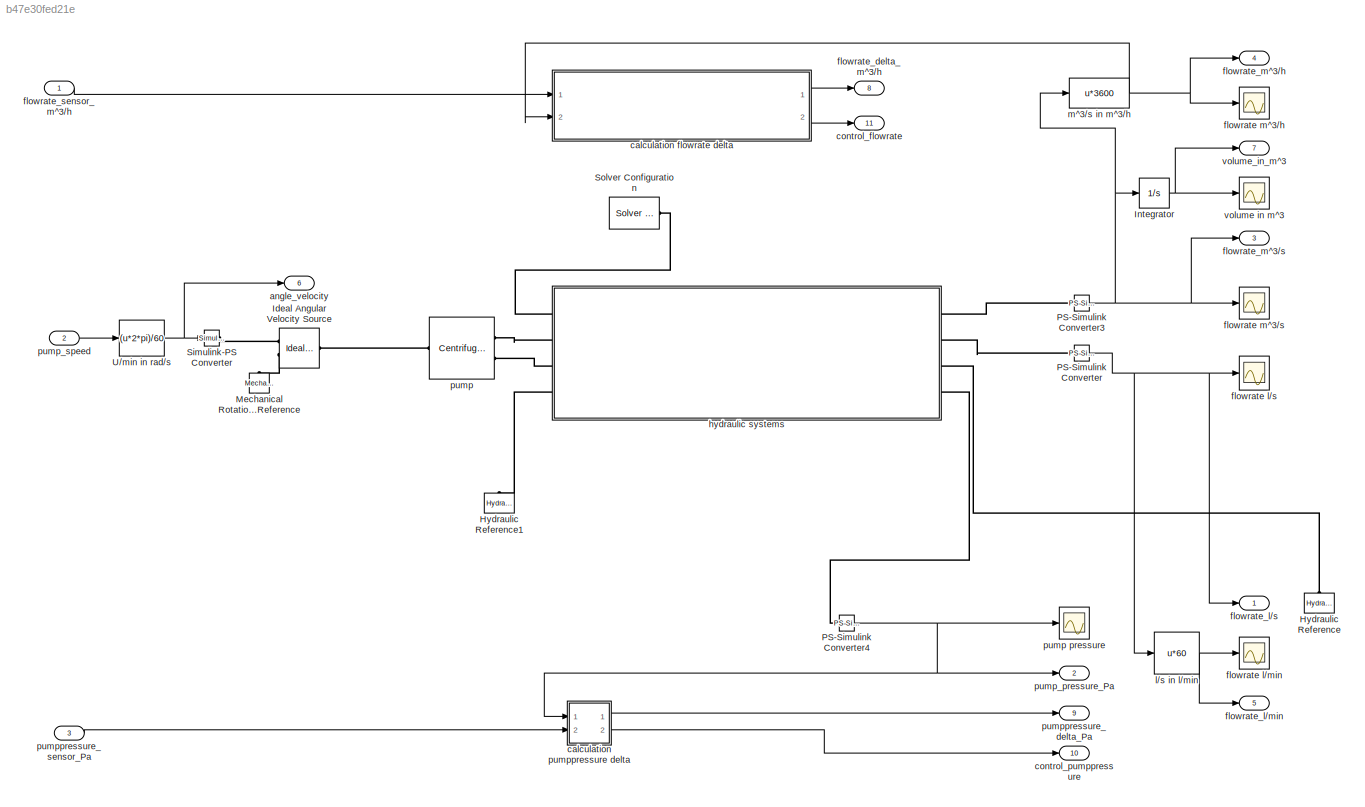
MODEL slx_b47e30fed21e
KIND model
CONFIG AbsTol = auto
CONFIG EnableMultiTasking = off
CONFIG FixedStep = auto
CONFIG MaxStep = auto
CONFIG MinStep = auto
CONFIG RelTol = 1e-3
CONFIG SampleTimeConstraint = Unconstrained
CONFIG Solver = FixedStepAuto
CONFIG SolverName = FixedStepAuto
CONFIG StartTime = 0.0
CONFIG StopTime = 10.0
BLOCK [Reference] Hydraulic Reference  REF=fl_lib/Hydraulic/Hydraulic Elements/Hydraulic Reference
  Ports = [0, 0, 0, 0, 0, 1]
  SourceBlock = fl_lib/Hydraulic/Hydraulic Elements/Hydraulic Reference
  SourceProductBaseCode = SS
  SourceProductName = Simscape
  SourceType = Hydraulic Reference
BLOCK [Reference] Hydraulic Reference1  REF=fl_lib/Hydraulic/Hydraulic Elements/Hydraulic Reference
  Ports = [0, 0, 0, 0, 0, 1]
  SourceBlock = fl_lib/Hydraulic/Hydraulic Elements/Hydraulic Reference
  SourceProductBaseCode = SS
  SourceProductName = Simscape
  SourceType = Hydraulic Reference
BLOCK [Reference] Ideal Angular Velocity Source  REF=fl_lib/Mechanical/Mechanical Sources/Ideal Angular
Velocity Source
  Ports = [0, 0, 0, 0, 0, 1, 2]
  SourceBlock = fl_lib/Mechanical/Mechanical Sources/Ideal Angular\nVelocity Source
  SourceProductBaseCode = SS
  SourceProductName = Simscape
  SourceType = Ideal Angular\nVelocity Source
BLOCK [Integrator] Integrator
  Ports = [1, 1]
BLOCK [Reference] Mechanical Rotational Reference  REF=fl_lib/Mechanical/Rotational Elements/Mechanical
Rotational Reference
  Ports = [0, 0, 0, 0, 0, 1]
  SourceBlock = fl_lib/Mechanical/Rotational Elements/Mechanical\nRotational Reference
  SourceProductBaseCode = SS
  SourceProductName = Simscape
  SourceType = Mechanical\nRotational Reference
BLOCK [Reference] PS-Simulink Converter  REF=nesl_utility/PS-Simulink
Converter
  Ports = [0, 1, 0, 0, 0, 1]
  SourceBlock = nesl_utility/PS-Simulink\nConverter
  SourceProductBaseCode = SS
  SourceProductName = Simscape
  SourceType = PS-Simulink\nConverter
BLOCK [Reference] PS-Simulink Converter3  REF=nesl_utility/PS-Simulink
Converter
  Ports = [0, 1, 0, 0, 0, 1]
  SourceBlock = nesl_utility/PS-Simulink\nConverter
  SourceProductBaseCode = SS
  SourceProductName = Simscape
  SourceType = PS-Simulink\nConverter
BLOCK [Reference] PS-Simulink Converter4  REF=nesl_utility/PS-Simulink
Converter
  Ports = [0, 1, 0, 0, 0, 1]
  SourceBlock = nesl_utility/PS-Simulink\nConverter
  SourceProductBaseCode = SS
  SourceProductName = Simscape
  SourceType = PS-Simulink\nConverter
BLOCK [Reference] Simulink-PS Converter  REF=nesl_utility/Simulink-PS
Converter
  Ports = [1, 0, 0, 0, 0, 0, 1]
  SourceBlock = nesl_utility/Simulink-PS\nConverter
  SourceProductBaseCode = SS
  SourceProductName = Simscape
  SourceType = Simulink-PS\nConverter
BLOCK [Reference] Solver Configuration  REF=nesl_utility/Solver
Configuration
  Ports = [0, 0, 0, 0, 0, 0, 1]
  SourceBlock = nesl_utility/Solver\nConfiguration
  SourceProductBaseCode = SS
  SourceProductName = Simscape
  SourceType = Solver\nConfiguration
BLOCK [Fcn] U//min in rad//s
  Expr = (u*2*pi)/60
BLOCK [Outport] angle_velocity
  IconDisplay = Port number
  Port = 6
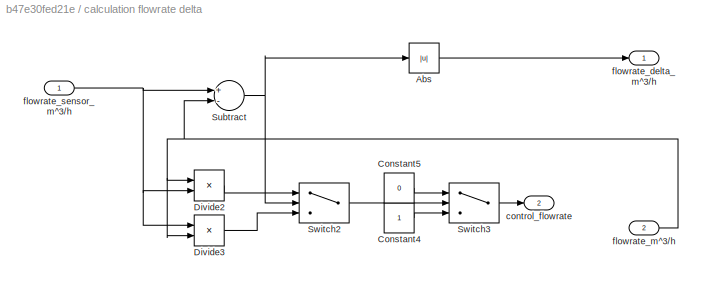
BLOCK [SubSystem] calculation flowrate delta
  Ports = [2, 2]
  RequestExecContextInheritance = off
BLOCK [Abs] calculation flowrate delta/Abs
  SaturateOnIntegerOverflow = off
BLOCK [Constant] calculation flowrate delta/Constant4
BLOCK [Constant] calculation flowrate delta/Constant5
  Value = 0
BLOCK [Product] calculation flowrate delta/Divide2
  InputSameDT = off
  Inputs = */
  OutDataTypeStr = Inherit: Inherit via internal rule
  Ports = [2, 1]
  RndMeth = Floor
  SaturateOnIntegerOverflow = off
BLOCK [Product] calculation flowrate delta/Divide3
  InputSameDT = off
  Inputs = */
  OutDataTypeStr = Inherit: Inherit via internal rule
  Ports = [2, 1]
  RndMeth = Floor
  SaturateOnIntegerOverflow = off
BLOCK [Sum] calculation flowrate delta/Subtract
  InputSameDT = off
  Inputs = +-
  OutDataTypeStr = Inherit: Inherit via internal rule
  Ports = [2, 1]
  SaturateOnIntegerOverflow = off
BLOCK [Switch] calculation flowrate delta/Switch2
  Criteria = u2 > Threshold
  InputSameDT = off
  SaturateOnIntegerOverflow = off
BLOCK [Switch] calculation flowrate delta/Switch3
  Criteria = u2 > Threshold
  InputSameDT = off
  SaturateOnIntegerOverflow = off
  Threshold = 0.9
BLOCK [Outport] calculation flowrate delta/control_flowrate
  IconDisplay = Port number
  Port = 2
BLOCK [Outport] calculation flowrate delta/flowrate_delta_m^3//h
  IconDisplay = Port number
BLOCK [Inport] calculation flowrate delta/flowrate_m^3//h
  IconDisplay = Port number
  Port = 2
BLOCK [Inport] calculation flowrate delta/flowrate_sensor_m^3//h
  IconDisplay = Port number
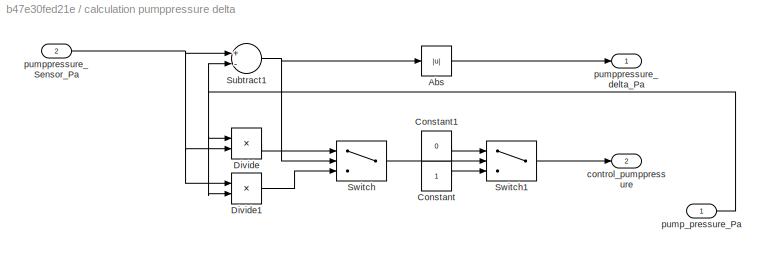
BLOCK [SubSystem] calculation pumppressure delta
  Ports = [2, 2]
  RequestExecContextInheritance = off
BLOCK [Abs] calculation pumppressure delta/Abs
  SaturateOnIntegerOverflow = off
BLOCK [Constant] calculation pumppressure delta/Constant
BLOCK [Constant] calculation pumppressure delta/Constant1
  Value = 0
BLOCK [Product] calculation pumppressure delta/Divide
  InputSameDT = off
  Inputs = */
  OutDataTypeStr = Inherit: Inherit via internal rule
  Ports = [2, 1]
  RndMeth = Floor
  SaturateOnIntegerOverflow = off
BLOCK [Product] calculation pumppressure delta/Divide1
  InputSameDT = off
  Inputs = */
  OutDataTypeStr = Inherit: Inherit via internal rule
  Ports = [2, 1]
  RndMeth = Floor
  SaturateOnIntegerOverflow = off
BLOCK [Sum] calculation pumppressure delta/Subtract1
  InputSameDT = off
  Inputs = +-
  OutDataTypeStr = Inherit: Inherit via internal rule
  Ports = [2, 1]
  SaturateOnIntegerOverflow = off
BLOCK [Switch] calculation pumppressure delta/Switch
  Criteria = u2 > Threshold
  InputSameDT = off
  SaturateOnIntegerOverflow = off
BLOCK [Switch] calculation pumppressure delta/Switch1
  Criteria = u2 > Threshold
  InputSameDT = off
  SaturateOnIntegerOverflow = off
  Threshold = 0.9
BLOCK [Outport] calculation pumppressure delta/control_pumppressure
  IconDisplay = Port number
  Port = 2
BLOCK [Inport] calculation pumppressure delta/pump_pressure_Pa
  IconDisplay = Port number
BLOCK [Inport] calculation pumppressure delta/pumppressure_Sensor_Pa
  IconDisplay = Port number
  Port = 2
BLOCK [Outport] calculation pumppressure delta/pumppressure_delta_Pa
  IconDisplay = Port number
BLOCK [Outport] control_flowrate
  IconDisplay = Port number
  Port = 11
BLOCK [Outport] control_pumppressure
  IconDisplay = Port number
  Port = 10
BLOCK [Scope] flowrate l//min
  Floating = off
  NumInputPorts = 1
  Ports = [1]
  ScopeSpecificationString = Simulink.scopes.TimeScopeBlockCfg('CurrentConfiguration', extmgr.ConfigurationSet(extmgr.Configuration('Core','General UI',true),extmgr.Configuration('Core','Source UI',true),extmgr.Configuration('Sources','WiredSimulink',true,'DataLoggingVariableName','ScopeData1'),extmgr.Configuration('Visuals','Time Domain',true,'SerializedDisplays',{struct('MinYLimReal','2651.61985','MaxYLimReal','4651.61985',...<+1451ch>
BLOCK [Scope] flowrate l//s
  Floating = off
  NumInputPorts = 1
  Ports = [1]
  ScopeSpecificationString = Simulink.scopes.TimeScopeBlockCfg('CurrentConfiguration', extmgr.ConfigurationSet(extmgr.Configuration('Core','General UI',true),extmgr.Configuration('Core','Source UI',true),extmgr.Configuration('Sources','WiredSimulink',true,'DataLoggingVariableName','ScopeData2'),extmgr.Configuration('Visuals','Time Domain',true,'SerializedDisplays',{struct('MinYLimReal','50.86033','MaxYLimReal','70.86033','YLa...<+1451ch>
BLOCK [Scope] flowrate m^3//h
  Floating = off
  NumInputPorts = 1
  Ports = [1]
  ScopeSpecificationString = Simulink.scopes.TimeScopeBlockCfg('CurrentConfiguration', extmgr.ConfigurationSet(extmgr.Configuration('Core','General UI',true),extmgr.Configuration('Core','Source UI',true),extmgr.Configuration('Sources','WiredSimulink',true,'DataLoggingVariableName','ScopeData3'),extmgr.Configuration('Visuals','Time Domain',true,'SerializedDisplays',{struct('MinYLimReal','119.58031','MaxYLimReal','319.58031','Y...<+1733ch>
BLOCK [Scope] flowrate m^3//s
  Floating = off
  NumInputPorts = 1
  Ports = [1]
  ScopeSpecificationString = Simulink.scopes.TimeScopeBlockCfg('CurrentConfiguration', extmgr.ConfigurationSet(extmgr.Configuration('Core','General UI',true),extmgr.Configuration('Core','Source UI',true),extmgr.Configuration('Sources','WiredSimulink',true,'DataLoggingVariableName','ScopeData4'),extmgr.Configuration('Visuals','Time Domain',true,'SerializedDisplays',{struct('MinYLimReal','-1.00000','MaxYLimReal','1.00000','YLab...<+1417ch>
BLOCK [Outport] flowrate_delta_m^3//h
  IconDisplay = Port number
  Port = 8
BLOCK [Outport] flowrate_l//min
  IconDisplay = Port number
  Port = 5
BLOCK [Outport] flowrate_l//s
  IconDisplay = Port number
BLOCK [Outport] flowrate_m^3//h
  IconDisplay = Port number
  Port = 4
BLOCK [Outport] flowrate_m^3//s
  IconDisplay = Port number
  Port = 3
BLOCK [Inport] flowrate_sensor_m^3//h
  IconDisplay = Port number
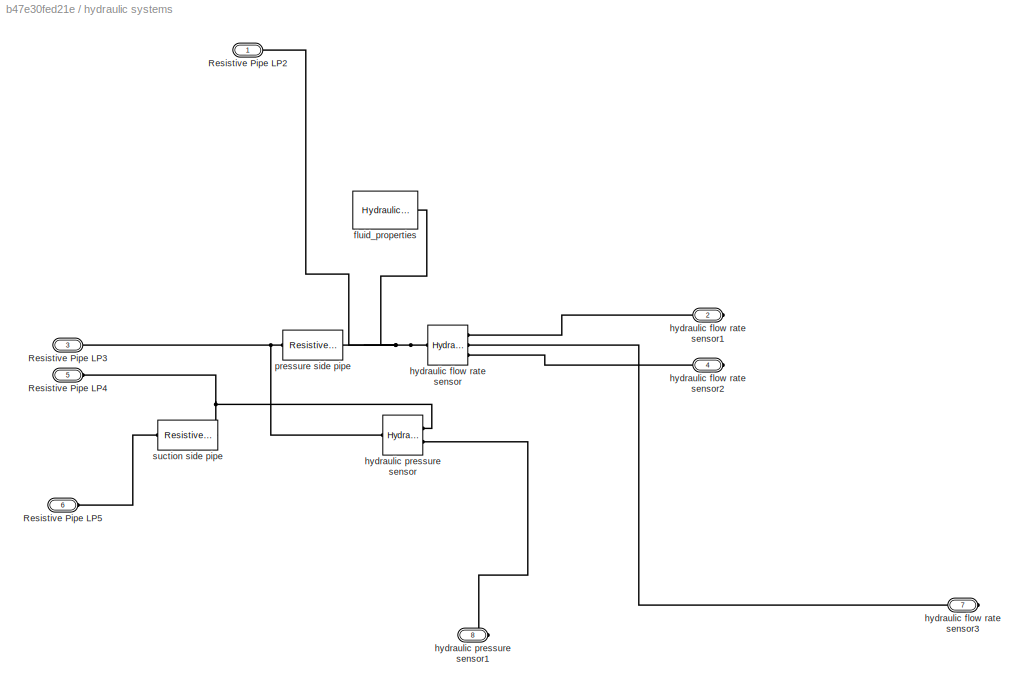
BLOCK [SubSystem] hydraulic systems
  Ports = [0, 0, 0, 0, 0, 4, 4]
  RequestExecContextInheritance = off
BLOCK [PMIOPort] hydraulic systems/Resistive Pipe LP2
  Side = Left
BLOCK [PMIOPort] hydraulic systems/Resistive Pipe LP3
  Port = 3
  Side = Left
BLOCK [PMIOPort] hydraulic systems/Resistive Pipe LP4
  Port = 5
  Side = Left
BLOCK [PMIOPort] hydraulic systems/Resistive Pipe LP5
  Port = 6
  Side = Left
BLOCK [Reference] hydraulic systems/fluid_properties  REF=sh_lib/Hydraulic Utilities/Hydraulic Fluid
  Ports = [0, 0, 0, 0, 0, 0, 1]
  SourceBlock = sh_lib/Hydraulic Utilities/Hydraulic Fluid
  SourceProductBaseCode = SH
  SourceProductName = Simscape Fluids
  SourceType = Hydraulic Fluid
BLOCK [Reference] hydraulic systems/hydraulic flow rate sensor  REF=fl_lib/Hydraulic/Hydraulic Sensors/Hydraulic Flow Rate
Sensor
  Ports = [0, 0, 0, 0, 0, 1, 3]
  SourceBlock = fl_lib/Hydraulic/Hydraulic Sensors/Hydraulic Flow Rate\nSensor
  SourceProductBaseCode = SS
  SourceProductName = Simscape
  SourceType = Hydraulic Flow Rate\nSensor
BLOCK [PMIOPort] hydraulic systems/hydraulic flow rate sensor1
  Port = 2
  Side = Right
BLOCK [PMIOPort] hydraulic systems/hydraulic flow rate sensor2
  Port = 4
  Side = Right
BLOCK [PMIOPort] hydraulic systems/hydraulic flow rate sensor3
  Port = 7
  Side = Right
BLOCK [Reference] hydraulic systems/hydraulic pressure sensor  REF=fl_lib/Hydraulic/Hydraulic Sensors/Hydraulic Pressure
Sensor
  Ports = [0, 0, 0, 0, 0, 1, 2]
  SourceBlock = fl_lib/Hydraulic/Hydraulic Sensors/Hydraulic Pressure\nSensor
  SourceProductBaseCode = SS
  SourceProductName = Simscape
  SourceType = Hydraulic Pressure\nSensor
BLOCK [PMIOPort] hydraulic systems/hydraulic pressure sensor1
  Port = 8
  Side = Right
BLOCK [Reference] hydraulic systems/pressure side pipe  REF=sh_lib/Low-Pressure Blocks/Resistive Pipe LP
  Ports = [0, 0, 0, 0, 0, 1, 1]
  SourceBlock = sh_lib/Low-Pressure Blocks/Resistive Pipe LP
  SourceProductBaseCode = SH
  SourceProductName = Simscape Fluids
  SourceType = Resistive Pipe LP
BLOCK [Reference] hydraulic systems/suction side pipe  REF=sh_lib/Low-Pressure Blocks/Resistive Pipe LP
  Ports = [0, 0, 0, 0, 0, 1, 1]
  SourceBlock = sh_lib/Low-Pressure Blocks/Resistive Pipe LP
  SourceProductBaseCode = SH
  SourceProductName = Simscape Fluids
  SourceType = Resistive Pipe LP
BLOCK [Fcn] l//s in l//min
  Expr = u*60
BLOCK [Fcn] m^3//s in m^3//h
  Expr = u*3600
BLOCK [Reference] pump  REF=sh_lib/Pumps and Motors/Centrifugal Pump
  Ports = [0, 0, 0, 0, 0, 1, 2]
  SourceBlock = sh_lib/Pumps and Motors/Centrifugal Pump
  SourceProductBaseCode = SH
  SourceProductName = Simscape Fluids
  SourceType = Centrifugal Pump
BLOCK [Scope] pump pressure
  Floating = off
  NumInputPorts = 1
  Ports = [1]
  ScopeSpecificationString = Simulink.scopes.TimeScopeBlockCfg('CurrentConfiguration', extmgr.ConfigurationSet(extmgr.Configuration('Core','General UI',true),extmgr.Configuration('Core','Source UI',true),extmgr.Configuration('Sources','WiredSimulink',true,'DataLoggingVariableName','ScopeData5'),extmgr.Configuration('Visuals','Time Domain',true,'SerializedDisplays',{struct('MinYLimReal','41486.53255','MaxYLimReal','61486.53255...<+1457ch>
BLOCK [Outport] pump_pressure_Pa
  IconDisplay = Port number
  Port = 2
BLOCK [Inport] pump_speed
  IconDisplay = Port number
  Port = 2
BLOCK [Outport] pumppressure_delta_Pa
  IconDisplay = Port number
  Port = 9
BLOCK [Inport] pumppressure_sensor_Pa
  IconDisplay = Port number
  Port = 3
BLOCK [Scope] volume in m^3
  Floating = off
  NumInputPorts = 1
  Ports = [1]
  ScopeSpecificationString = Simulink.scopes.TimeScopeBlockCfg('CurrentConfiguration', extmgr.ConfigurationSet(extmgr.Configuration('Core','General UI',true),extmgr.Configuration('Core','Source UI',true),extmgr.Configuration('Sources','WiredSimulink',true),extmgr.Configuration('Visuals','Time Domain',true,'SerializedDisplays',{struct('MinYLimReal','-0.76243','MaxYLimReal','6.86188','YLabelReal','','MinYLimMag','0.00000','MaxY...<+1330ch>
BLOCK [Outport] volume_in_m^3
  IconDisplay = Port number
  Port = 7
NET Integrator:1 -> volume in m^3:1, volume_in_m^3:1
NET PS-Simulink Converter3:1 -> Integrator:1, flowrate m^3//s:1, flowrate_m^3//s:1, m^3//s in m^3//h:1
NET PS-Simulink Converter4:1 -> calculation pumppressure delta:1, pump pressure:1, pump_pressure_Pa:1
NET PS-Simulink Converter:1 -> flowrate l//s:1, flowrate_l//s:1, l//s in l//min:1
NET U//min in rad//s:1 -> Simulink-PS Converter:1, angle_velocity:1
LINE calculation flowrate delta/Abs:1 -> calculation flowrate delta/flowrate_delta_m^3//h:1
LINE calculation flowrate delta/Constant4:1 -> calculation flowrate delta/Switch3:3
LINE calculation flowrate delta/Constant5:1 -> calculation flowrate delta/Switch3:1
LINE calculation flowrate delta/Divide2:1 -> calculation flowrate delta/Switch2:1
LINE calculation flowrate delta/Divide3:1 -> calculation flowrate delta/Switch2:3
NET calculation flowrate delta/Subtract:1 -> calculation flowrate delta/Abs:1, calculation flowrate delta/Switch2:2
LINE calculation flowrate delta/Switch2:1 -> calculation flowrate delta/Switch3:2
LINE calculation flowrate delta/Switch3:1 -> calculation flowrate delta/control_flowrate:1
NET calculation flowrate delta/flowrate_m^3//h:1 -> calculation flowrate delta/Divide2:1, calculation flowrate delta/Divide3:2, calculation flowrate delta/Subtract:2
NET calculation flowrate delta/flowrate_sensor_m^3//h:1 -> calculation flowrate delta/Divide2:2, calculation flowrate delta/Divide3:1, calculation flowrate delta/Subtract:1
LINE calculation flowrate delta:1 -> flowrate_delta_m^3//h:1
LINE calculation flowrate delta:2 -> control_flowrate:1
LINE calculation pumppressure delta/Abs:1 -> calculation pumppressure delta/pumppressure_delta_Pa:1
LINE calculation pumppressure delta/Constant1:1 -> calculation pumppressure delta/Switch1:1
LINE calculation pumppressure delta/Constant:1 -> calculation pumppressure delta/Switch1:3
LINE calculation pumppressure delta/Divide1:1 -> calculation pumppressure delta/Switch:3
LINE calculation pumppressure delta/Divide:1 -> calculation pumppressure delta/Switch:1
NET calculation pumppressure delta/Subtract1:1 -> calculation pumppressure delta/Abs:1, calculation pumppressure delta/Switch:2
LINE calculation pumppressure delta/Switch1:1 -> calculation pumppressure delta/control_pumppressure:1
LINE calculation pumppressure delta/Switch:1 -> calculation pumppressure delta/Switch1:2
NET calculation pumppressure delta/pump_pressure_Pa:1 -> calculation pumppressure delta/Divide1:2, calculation pumppressure delta/Divide:1, calculation pumppressure delta/Subtract1:2
NET calculation pumppressure delta/pumppressure_Sensor_Pa:1 -> calculation pumppressure delta/Divide1:1, calculation pumppressure delta/Divide:2, calculation pumppressure delta/Subtract1:1
LINE calculation pumppressure delta:1 -> pumppressure_delta_Pa:1
LINE calculation pumppressure delta:2 -> control_pumppressure:1
LINE flowrate_sensor_m^3//h:1 -> calculation flowrate delta:1
NET l//s in l//min:1 -> flowrate l//min:1, flowrate_l//min:1
NET m^3//s in m^3//h:1 -> calculation flowrate delta:2, flowrate m^3//h:1, flowrate_m^3//h:1
LINE pump_speed:1 -> U//min in rad//s:1
LINE pumppressure_sensor_Pa:1 -> calculation pumppressure delta:2
PLINE Hydraulic Reference1:LConn1 -- hydraulic systems:LConn4
PLINE Hydraulic Reference:LConn1 -- hydraulic systems:RConn3
PLINE Ideal Angular Velocity Source:LConn1 -- pump:LConn1
PLINE Ideal Angular Velocity Source:RConn1 -- Simulink-PS Converter:RConn1
PLINE Ideal Angular Velocity Source:RConn2 -- Mechanical Rotational Reference:LConn1
PLINE PS-Simulink Converter3:LConn1 -- hydraulic systems:RConn1
PLINE PS-Simulink Converter4:LConn1 -- hydraulic systems:RConn4
PLINE PS-Simulink Converter:LConn1 -- hydraulic systems:RConn2
PLINE Solver Configuration:RConn1 -- hydraulic systems:LConn1
PNET net1: hydraulic systems/Resistive Pipe LP2:RConn1 -- hydraulic systems/fluid_properties:RConn1 -- hydraulic systems/hydraulic flow rate sensor:LConn1 -- hydraulic systems/pressure side pipe:RConn1
PNET net2: hydraulic systems/Resistive Pipe LP3:RConn1 -- hydraulic systems/hydraulic pressure sensor:LConn1 -- hydraulic systems/pressure side pipe:LConn1
PNET net3: hydraulic systems/Resistive Pipe LP4:RConn1 -- hydraulic systems/hydraulic pressure sensor:RConn1 -- hydraulic systems/suction side pipe:RConn1
PLINE hydraulic systems/Resistive Pipe LP5:RConn1 -- hydraulic systems/suction side pipe:LConn1
PLINE hydraulic systems/hydraulic flow rate sensor1:RConn1 -- hydraulic systems/hydraulic flow rate sensor:RConn1
PLINE hydraulic systems/hydraulic flow rate sensor2:RConn1 -- hydraulic systems/hydraulic flow rate sensor:RConn3
PLINE hydraulic systems/hydraulic flow rate sensor3:RConn1 -- hydraulic systems/hydraulic flow rate sensor:RConn2
PLINE hydraulic systems/hydraulic pressure sensor1:RConn1 -- hydraulic systems/hydraulic pressure sensor:RConn2
PLINE hydraulic systems:LConn2 -- pump:RConn1
PLINE hydraulic systems:LConn3 -- pump:RConn2
note: NET lines group one-source signal fan-out (src -> all destinations, sorted); 1:1 wires keep LINE; PNET lines group multi-terminal physical nets as a canonical sorted terminal list (undirected conserving connections); 2-terminal nets keep the pairwise PLINE form
